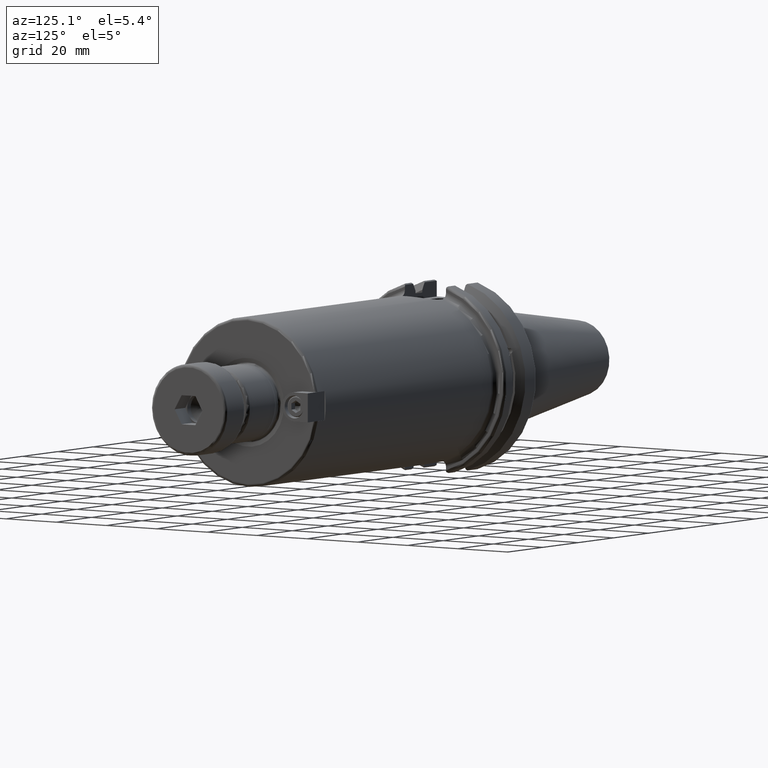
[diagram: clean part render]
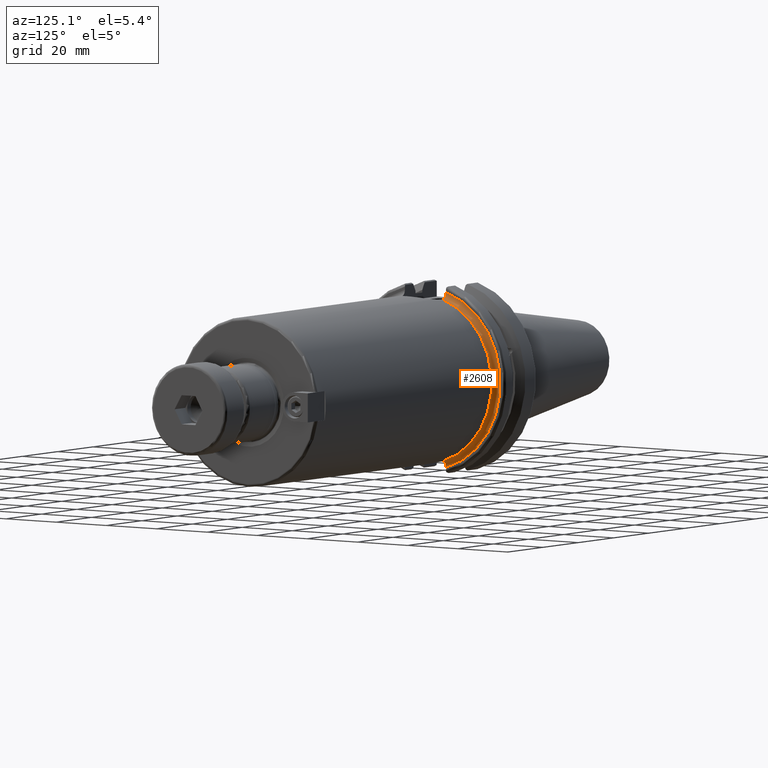
[diagram: same view with one face highlighted and labeled with its STEP entity id]
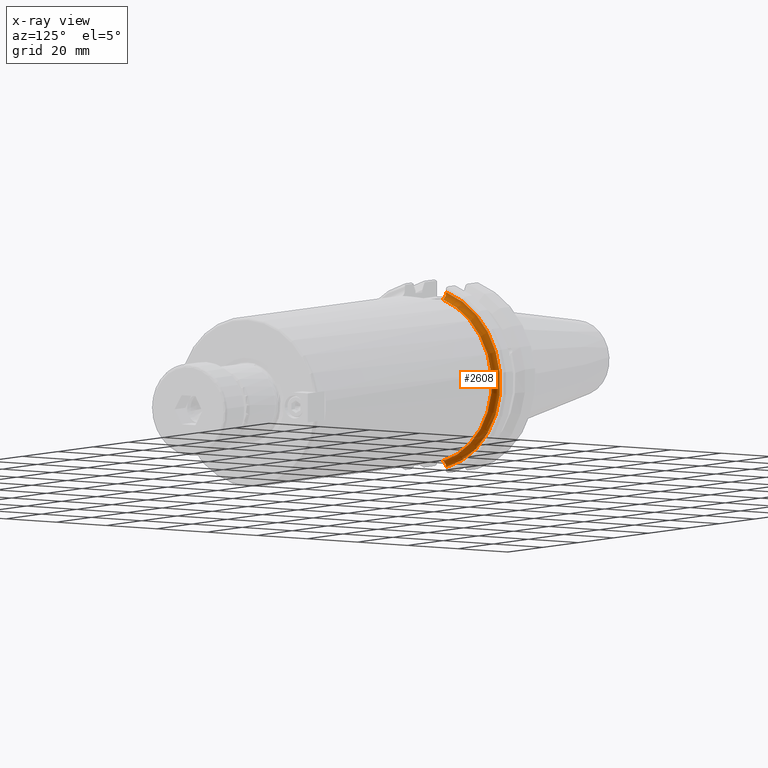
[diagram: x-ray of the same camera — body ghosted, the highlighted face saturated]
A machine part, auxiliary view. The second image highlights one B-rep face of the part: STEP entity #2608.
The next image is the same camera in x-ray: the body ghosted, the highlighted face saturated — about 0% of this face is hidden behind the body in this view.
In plain terms, the highlighted toroidal blend (fillet) surface has major radius 29.79 mm and minor (blend) radius 2 mm.
Its self-contained STEP definition (entity closure, byte-faithful):
#99=TOROIDAL_SURFACE('',#2901,29.79,2.);
#258=FACE_OUTER_BOUND('',#419,.T.);
#419=EDGE_LOOP('',(#1884,#1885,#1886,#1887));
#570=CIRCLE('',#2845,27.79);
#602=CIRCLE('',#2902,29.79);
#1056=B_SPLINE_CURVE_WITH_KNOTS('',3,(#4293,#4294,#4295,#4296,#4297,#4298,
#4299,#4300,#4301,#4302),.UNSPECIFIED.,.F.,.F.,(4,2,2,2,4),(0.604360969858465,
0.677382226408822,0.752123199410026,0.82881918579656,0.906907593665808),
 .UNSPECIFIED.);
#1057=B_SPLINE_CURVE_WITH_KNOTS('',3,(#4305,#4306,#4307,#4308,#4309,#4310,
#4311,#4312,#4313,#4314),.UNSPECIFIED.,.F.,.F.,(4,2,2,2,4),(0.301814346051123,
0.37990275392037,0.456598740306904,0.531339713308108,0.604360969858465),
 .UNSPECIFIED.);
#1097=VERTEX_POINT('',#4026);
#1098=VERTEX_POINT('',#4028);
#1146=VERTEX_POINT('',#4292);
#1147=VERTEX_POINT('',#4303);
#1360=EDGE_CURVE('',#1098,#1097,#570,.T.);
#1430=EDGE_CURVE('',#1097,#1146,#1056,.T.);
#1431=EDGE_CURVE('',#1146,#1147,#602,.T.);
#1432=EDGE_CURVE('',#1098,#1147,#1057,.F.);
#1884=ORIENTED_EDGE('',*,*,#1430,.T.);
#1885=ORIENTED_EDGE('',*,*,#1431,.T.);
#1886=ORIENTED_EDGE('',*,*,#1432,.F.);
#1887=ORIENTED_EDGE('',*,*,#1360,.T.);
#2608=ADVANCED_FACE('',(#258),#99,.F.);
#2845=AXIS2_PLACEMENT_3D('',#4029,#3185,#3186);
#2901=AXIS2_PLACEMENT_3D('',#4291,#3326,#3327);
#2902=AXIS2_PLACEMENT_3D('',#4304,#3328,#3329);
#3185=DIRECTION('center_axis',(-1.,0.,0.));
#3186=DIRECTION('ref_axis',(0.,1.,0.));
#3326=DIRECTION('center_axis',(-1.,0.,0.));
#3327=DIRECTION('ref_axis',(0.,0.,1.));
#3328=DIRECTION('center_axis',(1.,0.,0.));
#3329=DIRECTION('ref_axis',(0.,1.,0.));
#4026=CARTESIAN_POINT('',(21.05,8.19,-26.5557526724437));
#4028=CARTESIAN_POINT('',(21.05,8.19,26.5557526724437));
#4029=CARTESIAN_POINT('Origin',(21.05,0.,0.));
#4291=CARTESIAN_POINT('Origin',(21.05,0.,0.));
#4292=CARTESIAN_POINT('',(19.05,8.19,-28.6420669645192));
#4293=CARTESIAN_POINT('Ctrl Pts',(21.05,8.19,-26.5557526724437));
#4294=CARTESIAN_POINT('Ctrl Pts',(20.8065958114988,8.19,-26.5557526724437));
#4295=CARTESIAN_POINT('Ctrl Pts',(20.5205089275426,8.19,-26.6146420378616));
#4296=CARTESIAN_POINT('Ctrl Pts',(20.0672722752231,8.19,-26.8074448966327));
#4297=CARTESIAN_POINT('Ctrl Pts',(19.8213435405658,8.19,-26.9774403853744));
#4298=CARTESIAN_POINT('Ctrl Pts',(19.46924233437,8.19,-27.3391551183123));
#4299=CARTESIAN_POINT('Ctrl Pts',(19.3025851487476,8.19,-27.5967240833008));
#4300=CARTESIAN_POINT('Ctrl Pts',(19.1092984819122,8.19,-28.0750990234572));
#4301=CARTESIAN_POINT('Ctrl Pts',(19.05,8.19,-28.3817722716217));
#4302=CARTESIAN_POINT('Ctrl Pts',(19.05,8.19,-28.6420669645192));
#4303=CARTESIAN_POINT('',(19.05,8.19,28.6420669645192));
#4304=CARTESIAN_POINT('Origin',(19.05,0.,0.));
#4305=CARTESIAN_POINT('Ctrl Pts',(19.05,8.19,28.6420669645192));
#4306=CARTESIAN_POINT('Ctrl Pts',(19.05,8.19,28.3817722716217));
#4307=CARTESIAN_POINT('Ctrl Pts',(19.1092984819122,8.19,28.0750990234572));
#4308=CARTESIAN_POINT('Ctrl Pts',(19.3025851487476,8.19,27.5967240833008));
#4309=CARTESIAN_POINT('Ctrl Pts',(19.46924233437,8.19,27.3391551183123));
#4310=CARTESIAN_POINT('Ctrl Pts',(19.8213435405658,8.19,26.9774403853744));
#4311=CARTESIAN_POINT('Ctrl Pts',(20.0672722752231,8.19,26.8074448966327));
#4312=CARTESIAN_POINT('Ctrl Pts',(20.5205089275426,8.19,26.6146420378616));
#4313=CARTESIAN_POINT('Ctrl Pts',(20.8065958114988,8.19,26.5557526724437));
#4314=CARTESIAN_POINT('Ctrl Pts',(21.05,8.19,26.5557526724437));